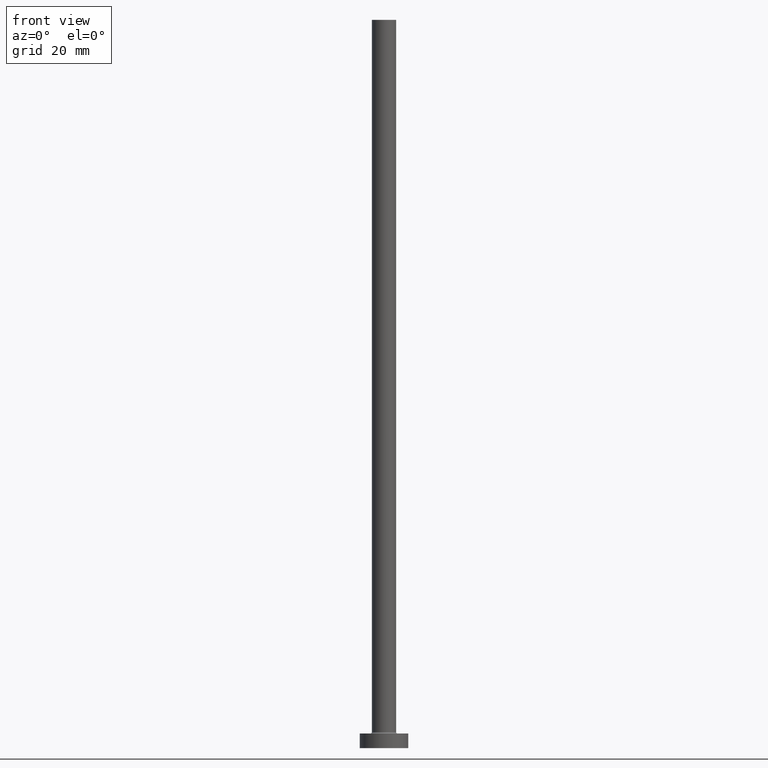
[diagram: clean part render]
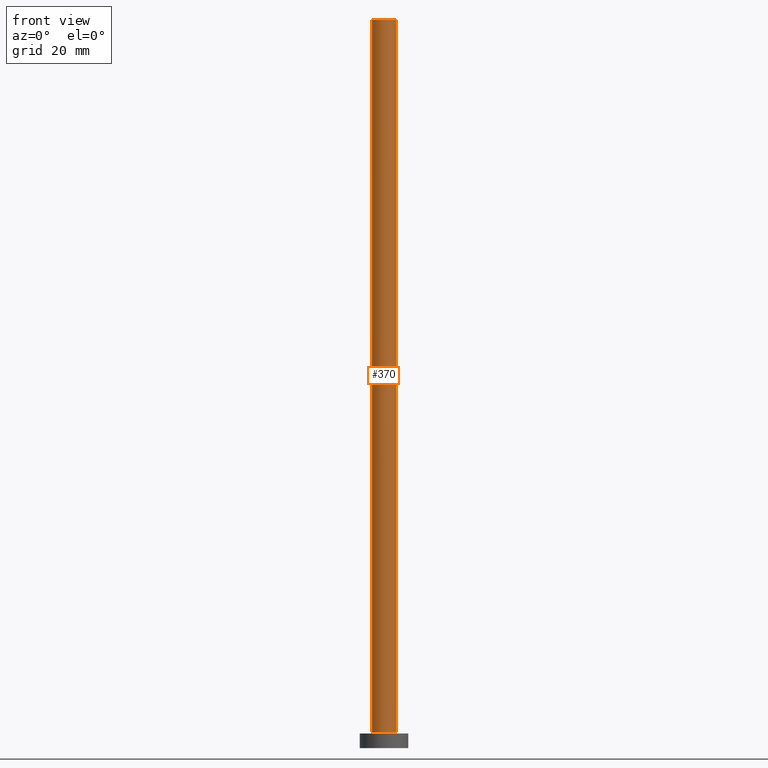
[diagram: same view with one face highlighted and labeled with its STEP entity id]
A machine part, front view. The second image highlights one B-rep face of the part: STEP entity #370.
In plain terms, the highlighted cylindrical surface (edge-blend (fillet) strip) has radius 2.5 mm, axis along (-0, -0, -1).
Its self-contained STEP definition (entity closure, byte-faithful):
#12 = ORIENTED_EDGE ( 'NONE', *, *, #421, .F. ) ;
#32 = DIRECTION ( 'NONE',  ( 1.000000000000000000, 0.000000000000000000, 0.000000000000000000 ) ) ;
#41 = CARTESIAN_POINT ( 'NONE',  ( 0.000000000000000000, 0.000000000000000000, 150.0000000000000000 ) ) ;
#44 = AXIS2_PLACEMENT_3D ( 'NONE', #41, #288, #424 ) ;
#48 = DIRECTION ( 'NONE',  ( -0.000000000000000000, -0.000000000000000000, -1.000000000000000000 ) ) ;
#49 = VERTEX_POINT ( 'NONE', #150 ) ;
#66 = CARTESIAN_POINT ( 'NONE',  ( 0.000000000000000000, 0.000000000000000000, 3.299999999999997158 ) ) ;
#70 = DIRECTION ( 'NONE',  ( -0.000000000000000000, -0.000000000000000000, -1.000000000000000000 ) ) ;
#71 = CYLINDRICAL_SURFACE ( 'NONE', #44, 2.500000000000000000 ) ;
#77 = CARTESIAN_POINT ( 'NONE',  ( -2.500000000000000000, 0.000000000000000000, 150.0000000000000000 ) ) ;
#111 = DIRECTION ( 'NONE',  ( 0.000000000000000000, 0.000000000000000000, 1.000000000000000000 ) ) ;
#117 = VERTEX_POINT ( 'NONE', #164 ) ;
#118 = LINE ( 'NONE', #304, #196 ) ;
#130 = CARTESIAN_POINT ( 'NONE',  ( 2.500000000000000000, 3.061616997868383141E-16, 3.299999999999997158 ) ) ;
#131 = ORIENTED_EDGE ( 'NONE', *, *, #175, .T. ) ;
#134 = FACE_OUTER_BOUND ( 'NONE', #302, .T. ) ;
#150 = CARTESIAN_POINT ( 'NONE',  ( -2.500000000000000000, 0.000000000000000000, 3.299999999999997158 ) ) ;
#164 = CARTESIAN_POINT ( 'NONE',  ( 2.500000000000000000, 3.061616997868383141E-16, 150.0000000000000000 ) ) ;
#174 = CARTESIAN_POINT ( 'NONE',  ( -2.500000000000000000, 0.000000000000000000, 150.0000000000000000 ) ) ;
#175 = EDGE_CURVE ( 'NONE', #49, #353, #330, .T. ) ;
#196 = VECTOR ( 'NONE', #48, 1000.000000000000000 ) ;
#233 = EDGE_CURVE ( 'NONE', #254, #49, #290, .T. ) ;
#254 = VERTEX_POINT ( 'NONE', #77 ) ;
#256 = CIRCLE ( 'NONE', #383, 2.500000000000000000 ) ;
#288 = DIRECTION ( 'NONE',  ( -0.000000000000000000, -0.000000000000000000, -1.000000000000000000 ) ) ;
#290 = LINE ( 'NONE', #174, #427 ) ;
#302 = EDGE_LOOP ( 'NONE', ( #12, #393, #334, #131 ) ) ;
#304 = CARTESIAN_POINT ( 'NONE',  ( 2.500000000000000000, 3.061616997868383141E-16, 150.0000000000000000 ) ) ;
#330 = CIRCLE ( 'NONE', #377, 2.500000000000000000 ) ;
#334 = ORIENTED_EDGE ( 'NONE', *, *, #233, .T. ) ;
#353 = VERTEX_POINT ( 'NONE', #130 ) ;
#369 = DIRECTION ( 'NONE',  ( 1.000000000000000000, 0.000000000000000000, 0.000000000000000000 ) ) ;
#370 = ADVANCED_FACE ( 'NONE', ( #134 ), #71, .T. ) ;
#377 = AXIS2_PLACEMENT_3D ( 'NONE', #66, #460, #32 ) ;
#383 = AXIS2_PLACEMENT_3D ( 'NONE', #441, #111, #369 ) ;
#393 = ORIENTED_EDGE ( 'NONE', *, *, #458, .F. ) ;
#421 = EDGE_CURVE ( 'NONE', #117, #353, #118, .T. ) ;
#424 = DIRECTION ( 'NONE',  ( -1.000000000000000000, 0.000000000000000000, 0.000000000000000000 ) ) ;
#427 = VECTOR ( 'NONE', #70, 1000.000000000000000 ) ;
#441 = CARTESIAN_POINT ( 'NONE',  ( 0.000000000000000000, 0.000000000000000000, 150.0000000000000000 ) ) ;
#458 = EDGE_CURVE ( 'NONE', #254, #117, #256, .T. ) ;
#460 = DIRECTION ( 'NONE',  ( 0.000000000000000000, 0.000000000000000000, 1.000000000000000000 ) ) ;